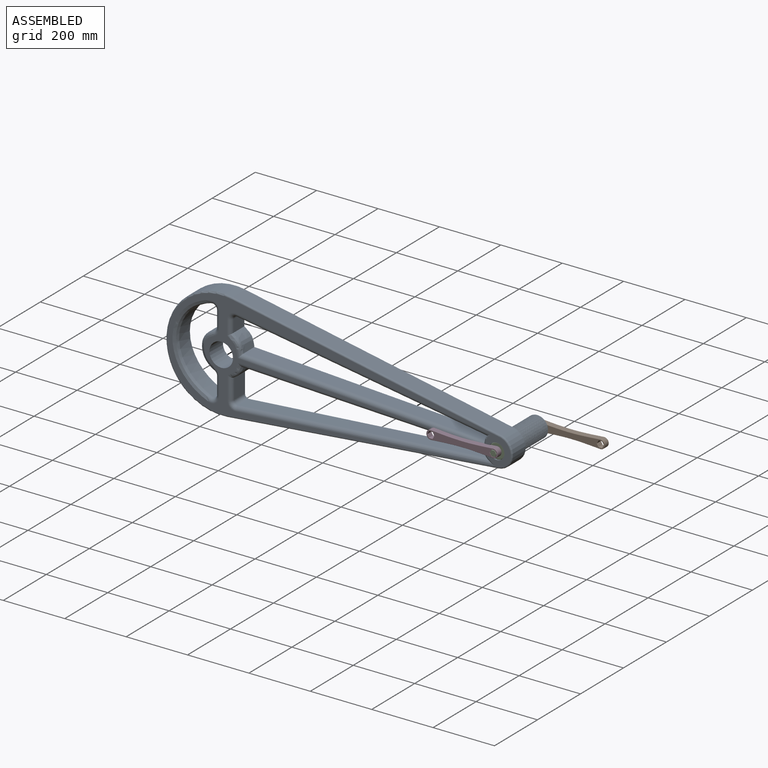
[diagram: assembled view]
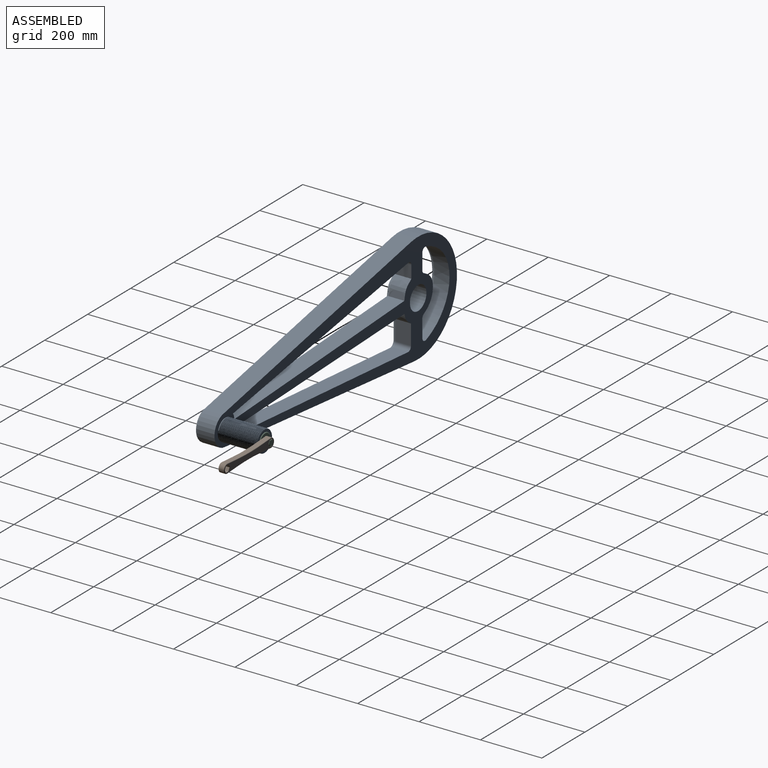
[diagram: assembled view, second angle]
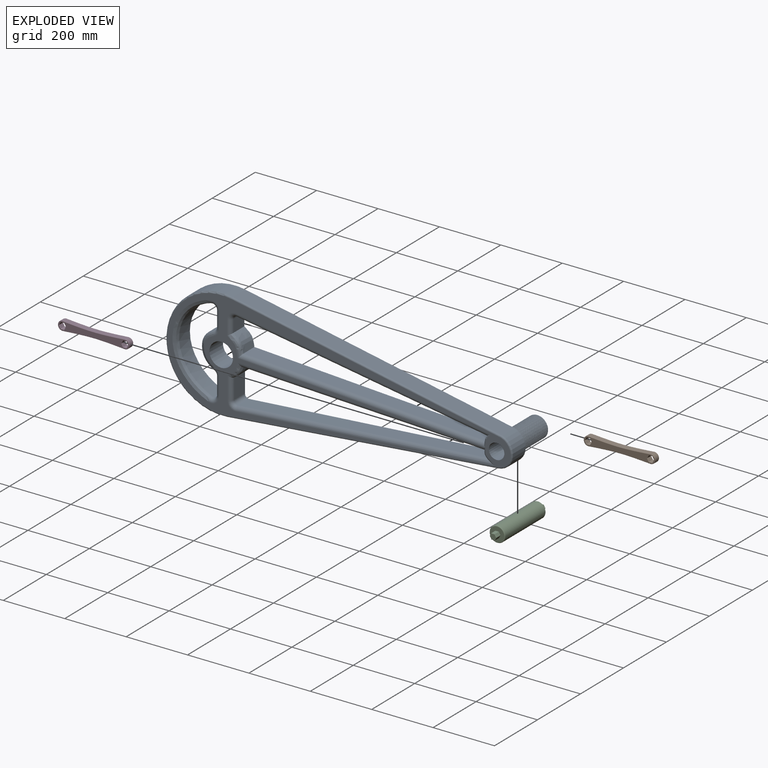
[diagram: exploded view]
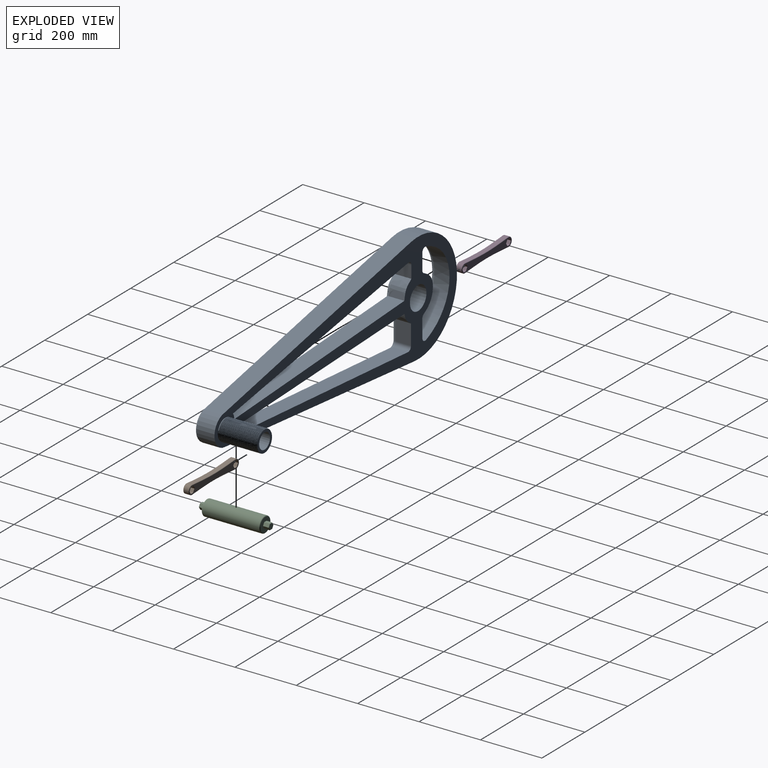
[diagram: exploded view, second angle]
ASSEMBLY  parts=4 mates=3
PART A: 110 faces, bbox 193.2x1148.9x392.2 mm
  f0: plane 1118.24x350.86mm, normal (1,0,0), area 58849.3mm2, adj f3,f62,f63,f64,f65,f66,f79,f80
  f1: plane 1128.4x361.02mm, normal (-1,0,0), area 125209.9mm2, adj f2,f4,f59,f60,f61,f66,f67,f68
  f2: cylinder r=50.8mm len=101.42mm, axis (-1,0,0), area 8873.3mm2, adj f1,f59,f60,f63
  f3: cylinder r=25.4mm len=190.5mm, axis (1,0,0), area 30402.4mm2, adj f0,f55
  f4: cylinder r=34.92mm len=69.85mm, axis (1,0,0), area 317.9mm2, adj f1,f54,f56,f57,f58
  f5: cylinder r=34.92mm len=34mm, axis (1,0,0), area 10.3mm2, adj f6,f55,f58
  f6: cylinder r=34.92mm len=69.85mm, axis (1,0,0), area 106mm2, adj f5,f7,f57,f58
  f7: cylinder r=34.92mm len=69.85mm, axis (1,0,0), area 106.1mm2, adj f6,f8,f57,f58
  f8: cylinder r=34.92mm len=69.85mm, axis (1,0,0), area 106.3mm2, adj f7,f9,f57,f58
  f9: cylinder r=34.92mm len=69.85mm, axis (1,0,0), area 106.2mm2, adj f8,f10,f57,f58
  f10: cylinder r=34.92mm len=69.85mm, axis (1,0,0), area 106.4mm2, adj f9,f11,f57,f58
  f11: cylinder r=34.92mm len=69.85mm, axis (1,0,0), area 106.1mm2, adj f10,f12,f57,f58
  f12: cylinder r=34.92mm len=69.85mm, axis (1,0,0), area 106.1mm2, adj f11,f13,f57,f58
  f13: cylinder r=34.92mm len=69.85mm, axis (1,0,0), area 106.5mm2, adj f12,f14,f57,f58
  f14: cylinder r=34.92mm len=69.85mm, axis (1,0,0), area 106.2mm2, adj f13,f15,f57,f58
  f15: cylinder r=34.92mm len=69.85mm, axis (1,0,0), area 106.2mm2, adj f14,f16,f57,f58
  f16: cylinder r=34.92mm len=69.85mm, axis (1,0,0), area 106.2mm2, adj f15,f17,f57,f58
  f17: cylinder r=34.92mm len=69.85mm, axis (1,0,0), area 106.1mm2, adj f16,f18,f57,f58
  f18: cylinder r=34.92mm len=69.85mm, axis (1,0,0), area 106.5mm2, adj f17,f19,f57,f58
  f19: cylinder r=34.92mm len=69.85mm, axis (1,0,0), area 106.1mm2, adj f18,f20,f57,f58
  f20: cylinder r=34.92mm len=69.85mm, axis (1,0,0), area 106mm2, adj f19,f21,f57,f58
  f21: cylinder r=34.92mm len=69.85mm, axis (1,0,0), area 106.3mm2, adj f20,f22,f57,f58
  f22: cylinder r=34.92mm len=69.85mm, axis (1,0,0), area 106.2mm2, adj f21,f23,f57,f58
  f23: cylinder r=34.92mm len=69.85mm, axis (1,0,0), area 106.3mm2, adj f22,f24,f57,f58
  f24: cylinder r=34.92mm len=69.85mm, axis (1,0,0), area 106.1mm2, adj f23,f25,f57,f58
  f25: cylinder r=34.92mm len=69.85mm, axis (1,0,0), area 106mm2, adj f24,f26,f57,f58
  f26: cylinder r=34.92mm len=69.85mm, axis (1,0,0), area 106.5mm2, adj f25,f27,f57,f58
  f27: cylinder r=34.92mm len=69.85mm, axis (1,0,0), area 106.2mm2, adj f26,f28,f57,f58
  f28: cylinder r=34.92mm len=69.85mm, axis (1,0,0), area 106.1mm2, adj f27,f29,f57,f58
  f29: cylinder r=34.92mm len=69.85mm, axis (1,0,0), area 106.2mm2, adj f28,f30,f57,f58
  f30: cylinder r=34.92mm len=69.85mm, axis (1,0,0), area 106.1mm2, adj f29,f31,f57,f58
  f31: cylinder r=34.92mm len=69.85mm, axis (1,0,0), area 106.4mm2, adj f30,f32,f57,f58
  f32: cylinder r=34.92mm len=69.85mm, axis (1,0,0), area 106.2mm2, adj f31,f33,f57,f58
  f33: cylinder r=34.92mm len=69.85mm, axis (1,0,0), area 105.9mm2, adj f32,f34,f57,f58
  f34: cylinder r=34.92mm len=69.85mm, axis (1,0,0), area 106.4mm2, adj f33,f35,f57,f58
  f35: cylinder r=34.92mm len=69.85mm, axis (1,0,0), area 106.3mm2, adj f34,f36,f57,f58
  f36: cylinder r=34.92mm len=69.85mm, axis (1,0,0), area 106.2mm2, adj f35,f37,f57,f58
  f37: cylinder r=34.92mm len=69.85mm, axis (1,0,0), area 106.2mm2, adj f36,f38,f57,f58
  f38: cylinder r=34.92mm len=69.85mm, axis (1,0,0), area 106mm2, adj f37,f39,f57,f58
  f39: cylinder r=34.92mm len=69.85mm, axis (1,0,0), area 106.4mm2, adj f38,f40,f57,f58
  f40: cylinder r=34.92mm len=69.85mm, axis (1,0,0), area 106.3mm2, adj f39,f41,f57,f58
  f41: cylinder r=34.92mm len=69.85mm, axis (1,0,0), area 106mm2, adj f40,f42,f57,f58
  f42: cylinder r=34.92mm len=69.85mm, axis (1,0,0), area 106.2mm2, adj f41,f43,f57,f58
  f43: cylinder r=34.92mm len=69.85mm, axis (1,0,0), area 106.2mm2, adj f42,f44,f57,f58
  f44: cylinder r=34.92mm len=69.85mm, axis (1,0,0), area 106.3mm2, adj f43,f45,f57,f58
  f45: cylinder r=34.92mm len=69.85mm, axis (1,0,0), area 106.3mm2, adj f44,f46,f57,f58
  f46: cylinder r=34.92mm len=69.85mm, axis (1,0,0), area 105.9mm2, adj f45,f47,f57,f58
  f47: cylinder r=34.92mm len=69.85mm, axis (1,0,0), area 106.3mm2, adj f46,f48,f57,f58
  f48: cylinder r=34.92mm len=69.85mm, axis (1,0,0), area 106.4mm2, adj f47,f49,f57,f58
  f49: cylinder r=34.92mm len=69.85mm, axis (1,0,0), area 106.1mm2, adj f48,f50,f57,f58
  f50: cylinder r=34.92mm len=69.85mm, axis (1,0,0), area 106.2mm2, adj f49,f51,f57,f58
  f51: cylinder r=34.92mm len=69.85mm, axis (1,0,0), area 106.1mm2, adj f50,f52,f57,f58
  f52: cylinder r=34.92mm len=69.85mm, axis (1,0,0), area 106.4mm2, adj f51,f53,f57,f58
  f53: cylinder r=34.92mm len=69.85mm, axis (1,0,0), area 106.4mm2, adj f52,f54,f57,f58
  f54: cylinder r=34.92mm len=69.85mm, axis (1,0,0), area 105.9mm2, adj f4,f53,f57,f58
  f55: plane 69.94x69.88mm, normal (-1,0,0), area 1649.9mm2, adj f3,f5,f57,f58
  f56: plane 2.06x1.7mm, normal (0,0.31,-0.95), area 1.8mm2, adj f4,f57,f58
  f57: bspline ~128.9x80.65mm, area 21998.1mm2, adj f4,f6,f7,f8,f9,f10,f11,f12
  f58: bspline ~128.05x80.65mm, area 21786.3mm2, adj f4,f5,f6,f7,f8,f9,f10,f11
  f59: plane 866.08x171.06mm, normal (0,0.19,0.98), area 50901.1mm2, adj f1,f2,f61,f62
  f60: plane 881.31x84.28mm, normal (0,0.1,-1), area 51046.5mm2, adj f1,f2,f61,f65
  f61: cylinder r=180.51mm len=361.02mm, axis (-1,0,0), area 35737.4mm2, adj f1,f59,f60,f64
  f62: cylinder r=5.08mm len=867.36mm, axis (0,0.98,-0.19), area 7045.7mm2, adj f0,f59,f63,f64
  f63: torus R=45.72mm, axis (1,0,0), area 1185.3mm2, adj f0,f2,f62,f65
  f64: torus R=175.43mm, axis (1,0,0), area 4895.3mm2, adj f0,f61,f62,f65
  f65: cylinder r=5.08mm len=881.96mm, axis (0,-1,-0.1), area 7065.3mm2, adj f0,f60,f63,f64
  f66: cylinder r=38.51mm len=77.02mm, axis (1,0,0), area 15180.2mm2, adj f0,f1
  f67: plane 50.04x40.28mm, normal (0,1,0), area 2015.5mm2, adj f1,f68,f72,f83
  f68: extruded ~52.21x50.04mm, area 3238.1mm2, adj f1,f67,f69,f85
  f69: plane 790.81x50.04mm, normal (0,0.06,1), area 39638.6mm2, adj f1,f68,f70,f87
  f70: extruded ~57.66x23.76mm, area 1205.6mm2, adj f1,f69,f71,f79,f87,f90,f91,f92
  f71: plane 815.8x132.51mm, normal (0,-0.16,-0.99), area 41355.9mm2, adj f1,f70,f72,f79
  f72: cylinder r=12.7mm len=50.04mm, axis (1,0,0), area 1100.5mm2, adj f1,f67,f71,f81
  f73: plane 66.43x50.04mm, normal (0,1,0), area 3323.8mm2, adj f1,f74,f78,f84
  f74: cylinder r=12.7mm len=50.04mm, axis (1,0,0), area 1047.5mm2, adj f1,f73,f75,f82
  f75: plane 819.89x63.65mm, normal (0,-0.08,1), area 41148.9mm2, adj f1,f74,f76,f80
  f76: extruded ~57.66x27.32mm, area 1562.6mm2, adj f1,f75,f77,f80,f88,f89
  f77: plane 791.45x50.04mm, normal (0,-0.04,-1), area 39636.5mm2, adj f1,f76,f78,f88
  f78: extruded ~50.04x39.77mm, area 2602.2mm2, adj f1,f73,f77,f86
  f79: cylinder r=12.7mm len=830.01mm, axis (0,0.99,-0.16), area 16573.6mm2, adj f0,f70,f71,f81,f90
  f80: cylinder r=12.7mm len=843.71mm, axis (0,-1,-0.08), area 16570.1mm2, adj f0,f75,f76,f82,f89
  f81: torus R=25.4mm, axis (1,0,0), area 598.2mm2, adj f0,f72,f79,f83
  f82: torus R=25.4mm, axis (1,0,0), area 569.3mm2, adj f0,f74,f80,f84
  f83: cylinder r=12.7mm len=47.03mm, axis (0,0,1), area 870.9mm2, adj f0,f67,f81,f85
  f84: cylinder r=12.7mm len=74.19mm, axis (0,0,1), area 1402.6mm2, adj f0,f73,f82,f86
  f85: bspline ~96.46x61.06mm, area 1384.7mm2, adj f0,f68,f83,f87
  f86: bspline ~62.63x49.64mm, area 1140mm2, adj f0,f78,f84,f88
  f87: cylinder r=12.7mm len=806.24mm, axis (0,-1,0.06), area 15891.7mm2, adj f0,f69,f70,f85,f88,f92,f93
  f88: cylinder r=12.7mm len=807.79mm, axis (0,1,-0.04), area 15899.2mm2, adj f0,f76,f77,f86,f87,f89,f93
  f89: bspline ~61.57x48.06mm, area 377.5mm2, adj f0,f76,f80,f88
  f90: bspline ~35.5x28.34mm, area 121.1mm2, adj f0,f70,f79,f91
  f91: bspline ~5.08x4.76mm, area 4.3mm2, adj f70,f90,f92
  f92: bspline ~31.76x9.84mm, area 161.9mm2, adj f0,f70,f87,f91,f93
  f93: bspline ~5.49x5.28mm, area 0mm2, adj f87,f88,f92
  f94: plane 57.52x50.04mm, normal (0,-1,0), area 2878.4mm2, adj f1,f95,f101,f109
  f95: cylinder r=12.7mm len=50.04mm, axis (1,0,0), area 702.1mm2, adj f1,f94,f96,f107
  f96: extruded ~118.55x50.04mm, area 7727.1mm2, adj f1,f95,f97,f105
  f97: cylinder r=12.7mm len=50.04mm, axis (1,0,0), area 755.1mm2, adj f1,f96,f98,f103
  f98: plane 52.1x50.04mm, normal (0,-1,0), area 2607.1mm2, adj f1,f97,f99,f102
  f99: cylinder r=12.7mm len=50.04mm, axis (1,0,0), area 1146.4mm2, adj f1,f98,f100,f104
  f100: extruded ~275.49x110.97mm, area 18922.6mm2, adj f1,f99,f101,f106
  f101: cylinder r=12.7mm len=50.04mm, axis (1,0,0), area 1235.1mm2, adj f1,f94,f100,f108
  f102: cylinder r=12.7mm len=52.1mm, axis (0,0,-1), area 1039.4mm2, adj f0,f98,f103,f104
  f103: torus R=25.4mm, axis (1,0,0), area 410.4mm2, adj f0,f97,f102,f105
  f104: torus R=25.4mm, axis (1,0,0), area 623.1mm2, adj f0,f99,f102,f106
  f105: bspline ~121.43x50.97mm, area 2869.8mm2, adj f0,f96,f103,f107
  f106: bspline ~305.32x133.05mm, area 7776.9mm2, adj f0,f100,f104,f108
  f107: torus R=25.4mm, axis (1,0,0), area 381.6mm2, adj f0,f95,f105,f109
  f108: torus R=25.4mm, axis (1,0,0), area 671.3mm2, adj f0,f101,f106,f109
  f109: cylinder r=12.7mm len=57.52mm, axis (0,0,-1), area 1147.6mm2, adj f0,f94,f107,f108
PART B: 50 faces, bbox 282.8x19.1x35.9 mm
  f0: plane 16.51x9.53mm, normal (0.87,0,0.5), area 181.6mm2, adj f1,f15,f20,f36
  f1: plane 16.51x9.53mm, normal (0.87,0,-0.5), area 181.6mm2, adj f0,f2,f18,f34
  f2: plane 16.51x11mm, normal (0,0,-1), area 181.6mm2, adj f1,f3,f19,f35
  f3: plane 16.51x9.53mm, normal (-0.87,0,-0.5), area 181.6mm2, adj f2,f4,f21,f37
  f4: plane 16.51x9.53mm, normal (-0.87,0,0.5), area 181.6mm2, adj f3,f15,f23,f39
  f5: plane 16.51x9.53mm, normal (0.87,0,0.5), area 181.6mm2, adj f6,f13,f28,f44
  f6: plane 16.51x9.53mm, normal (0.87,0,-0.5), area 181.6mm2, adj f5,f7,f26,f42
  f7: plane 16.51x11mm, normal (0,0,-1), area 181.6mm2, adj f6,f8,f24,f40
  f8: plane 16.51x9.53mm, normal (-0.87,0,-0.5), area 181.6mm2, adj f7,f9,f25,f41
  f9: plane 16.51x9.53mm, normal (-0.87,0,0.5), area 181.6mm2, adj f8,f13,f27,f43
  f10: cylinder r=14.67mm len=29.34mm, axis (0,1,0), area 760.8mm2, adj f11,f14,f32,f48
  f11: extruded ~203.05x16.51mm, area 3357.9mm2, adj f10,f12,f30,f46
  f12: cylinder r=14.97mm len=29.94mm, axis (0,1,0), area 781.2mm2, adj f11,f14,f31,f47
  f13: plane 16.51x11mm, normal (0,0,1), area 181.6mm2, adj f5,f9,f29,f45
  f14: extruded ~203.05x16.51mm, area 3357.9mm2, adj f10,f12,f33,f49
  f15: plane 16.51x11mm, normal (0,0,1), area 181.6mm2, adj f0,f4,f22,f38
  f16: plane 230.3x27.45mm, normal (0,-1,0), area 3933mm2, adj f18,f19,f20,f21,f22,f23,f24,f25
  f17: plane 230.3x27.45mm, normal (0,1,0), area 3933.1mm2, adj f34,f35,f36,f37,f38,f39,f40,f41
  f18: cylinder r=1.27mm len=11.43mm, axis (-0.5,0,-0.87), area 23.4mm2, adj f1,f16,f19,f20
  f19: cylinder r=1.27mm len=12.47mm, axis (-1,0,0), area 23.4mm2, adj f2,f16,f18,f21
  f20: cylinder r=1.27mm len=11.43mm, axis (0.5,0,-0.87), area 23.4mm2, adj f0,f16,f18,f22
  f21: cylinder r=1.27mm len=11.43mm, axis (-0.5,0,0.87), area 23.4mm2, adj f3,f16,f19,f23
  f22: cylinder r=1.27mm len=12.47mm, axis (1,0,0), area 23.4mm2, adj f15,f16,f20,f23
  f23: cylinder r=1.27mm len=11.43mm, axis (0.5,0,0.87), area 23.4mm2, adj f4,f16,f21,f22
  f24: cylinder r=1.27mm len=12.47mm, axis (-1,0,0), area 23.4mm2, adj f7,f16,f25,f26
  f25: cylinder r=1.27mm len=11.43mm, axis (-0.5,0,0.87), area 23.4mm2, adj f8,f16,f24,f27
  f26: cylinder r=1.27mm len=11.43mm, axis (-0.5,0,-0.87), area 23.4mm2, adj f6,f16,f24,f28
  f27: cylinder r=1.27mm len=11.43mm, axis (0.5,0,0.87), area 23.4mm2, adj f9,f16,f25,f29
  f28: cylinder r=1.27mm len=11.43mm, axis (0.5,0,-0.87), area 23.4mm2, adj f5,f16,f26,f29
  f29: cylinder r=1.27mm len=12.47mm, axis (1,0,0), area 23.4mm2, adj f13,f16,f27,f28
  f30: bspline ~243.98x9.06mm, area 405.8mm2, adj f11,f16,f31,f32
  f31: torus R=13.7mm, axis (0,-1,0), area 91.4mm2, adj f12,f16,f30,f33
  f32: torus R=13.4mm, axis (0,-1,0), area 88.9mm2, adj f10,f16,f30,f33
  f33: bspline ~254.14x9.92mm, area 405.8mm2, adj f14,f16,f31,f32
  f34: cylinder r=1.27mm len=11.43mm, axis (0.5,0,0.87), area 23.4mm2, adj f1,f17,f35,f36
  f35: cylinder r=1.27mm len=12.47mm, axis (1,0,0), area 23.4mm2, adj f2,f17,f34,f37
  f36: cylinder r=1.27mm len=11.43mm, axis (-0.5,0,0.87), area 23.4mm2, adj f0,f17,f34,f38
  f37: cylinder r=1.27mm len=11.43mm, axis (0.5,0,-0.87), area 23.4mm2, adj f3,f17,f35,f39
  f38: cylinder r=1.27mm len=12.47mm, axis (-1,0,0), area 23.4mm2, adj f15,f17,f36,f39
  f39: cylinder r=1.27mm len=11.43mm, axis (-0.5,0,-0.87), area 23.4mm2, adj f4,f17,f37,f38
  f40: cylinder r=1.27mm len=12.47mm, axis (1,0,0), area 23.4mm2, adj f7,f17,f41,f42
  f41: cylinder r=1.27mm len=11.43mm, axis (0.5,0,-0.87), area 23.4mm2, adj f8,f17,f40,f43
  f42: cylinder r=1.27mm len=11.43mm, axis (0.5,0,0.87), area 23.4mm2, adj f6,f17,f40,f44
  f43: cylinder r=1.27mm len=11.43mm, axis (-0.5,0,-0.87), area 23.4mm2, adj f9,f17,f41,f45
  f44: cylinder r=1.27mm len=11.43mm, axis (-0.5,0,0.87), area 23.4mm2, adj f5,f17,f42,f45
  f45: cylinder r=1.27mm len=12.47mm, axis (-1,0,0), area 23.4mm2, adj f13,f17,f43,f44
  f46: bspline ~243.98x9.48mm, area 405.8mm2, adj f11,f17,f47,f48
  f47: torus R=13.7mm, axis (0,-1,0), area 91.4mm2, adj f12,f17,f46,f49
  f48: torus R=13.4mm, axis (0,-1,0), area 88.9mm2, adj f10,f17,f46,f49
  f49: bspline ~254.17x9.29mm, area 405.8mm2, adj f14,f17,f47,f48
PART C: 31 faces, bbox 228.6x55x55 mm
  f0: plane 45.72x45.72mm, normal (1,0,0), area 1327.4mm2, adj f10,f11,f12,f13,f14,f15,f17
  f1: cylinder r=25.4mm len=185.42mm, axis (-1,0,0), area 29591.7mm2, adj f17,f18
  f2: plane 45.72x45.72mm, normal (-1,0,0), area 1327.4mm2, adj f3,f4,f5,f6,f7,f8,f18
  f3: plane 17.78x9.53mm, normal (0,0.87,0.5), area 195.6mm2, adj f2,f4,f8,f26
  f4: plane 17.78x9.53mm, normal (0,0.87,-0.5), area 195.6mm2, adj f2,f3,f5,f25
  f5: plane 17.78x11mm, normal (0,0,-1), area 195.6mm2, adj f2,f4,f6,f27
  f6: plane 17.78x9.53mm, normal (0,-0.87,-0.5), area 195.6mm2, adj f2,f5,f7,f29
  f7: plane 17.78x9.53mm, normal (0,-0.87,0.5), area 195.6mm2, adj f2,f6,f8,f30
  f8: plane 17.78x11mm, normal (0,0,1), area 195.6mm2, adj f2,f3,f7,f28
  f9: plane 19.06x16.51mm, normal (-1,0,0), area 236.1mm2, adj f25,f26,f27,f28,f29,f30
  f10: plane 17.78x11mm, normal (0,0.01,1), area 195.6mm2, adj f0,f11,f15,f20
  f11: plane 17.78x9.48mm, normal (0,-0.86,0.51), area 195.6mm2, adj f0,f10,f12,f19
  f12: plane 17.78x9.57mm, normal (0,-0.87,-0.49), area 195.6mm2, adj f0,f11,f13,f21
  f13: plane 17.78x11mm, normal (0,-0.01,-1), area 195.6mm2, adj f0,f12,f14,f23
  f14: plane 17.78x9.48mm, normal (0,0.86,-0.51), area 195.6mm2, adj f0,f13,f15,f24
  f15: plane 17.78x9.57mm, normal (0,0.87,0.49), area 195.6mm2, adj f0,f10,f14,f22
  f16: plane 19.06x16.59mm, normal (1,0,0), area 236.1mm2, adj f19,f20,f21,f22,f23,f24
  f17: torus R=22.86mm, axis (1,0,0), area 613.6mm2, adj f0,f1
  f18: torus R=22.86mm, axis (1,0,0), area 613.6mm2, adj f1,f2
  f19: cylinder r=1.27mm len=10.12mm, axis (0,0.51,0.86), area 20.9mm2, adj f11,f16,f20,f21
  f20: cylinder r=1.27mm len=11.01mm, axis (0,1,-0.01), area 20.9mm2, adj f10,f16,f19,f22
  f21: cylinder r=1.27mm len=10.2mm, axis (0,-0.49,0.87), area 20.9mm2, adj f12,f16,f19,f23
  f22: cylinder r=1.27mm len=10.2mm, axis (0,0.49,-0.87), area 20.9mm2, adj f15,f16,f20,f24
  f23: cylinder r=1.27mm len=11.01mm, axis (0,-1,0.01), area 20.9mm2, adj f13,f16,f21,f24
  f24: cylinder r=1.27mm len=10.12mm, axis (0,-0.51,-0.86), area 20.9mm2, adj f14,f16,f22,f23
  f25: cylinder r=1.27mm len=10.16mm, axis (0,0.5,0.87), area 20.9mm2, adj f4,f9,f26,f27
  f26: cylinder r=1.27mm len=10.16mm, axis (0,-0.5,0.87), area 20.9mm2, adj f3,f9,f25,f28
  f27: cylinder r=1.27mm len=11mm, axis (0,1,0), area 20.9mm2, adj f5,f9,f25,f29
  f28: cylinder r=1.27mm len=11mm, axis (0,-1,0), area 20.9mm2, adj f8,f9,f26,f30
  f29: cylinder r=1.27mm len=10.16mm, axis (0,0.5,-0.87), area 20.9mm2, adj f6,f9,f27,f30
  f30: cylinder r=1.27mm len=10.16mm, axis (0,-0.5,-0.87), area 20.9mm2, adj f7,f9,f28,f29
PART D: same geometry as B
PLACE A rot(axis=(0,0,-1),90deg) t=(-881.32,-567.02,-225.89)mm
PLACE B rot(axis=(0,-1,0),0.5deg) t=(-99.76,-374.61,-238.82)mm fixed
PLACE C rot(axis=(0,0,-1),90deg) t=(-303.08,-393.03,-225.89)mm fixed
PLACE D t=(-303.08,-582.89,-240.56)mm fixed
MATE fastened C.f14 <-> D.f4  axis (0.87,0,-0.5) through (-294.83,-592.42,-230.65)mm
MATE revolute C.f1 <-> A.f2  axis (0,1,0) through (-303.08,-395.57,-225.89)mm
MATE fastened B.f5 <-> C.f6  axis (0.86,0,0.51) through (-311.29,-384.14,-230.72)mm
